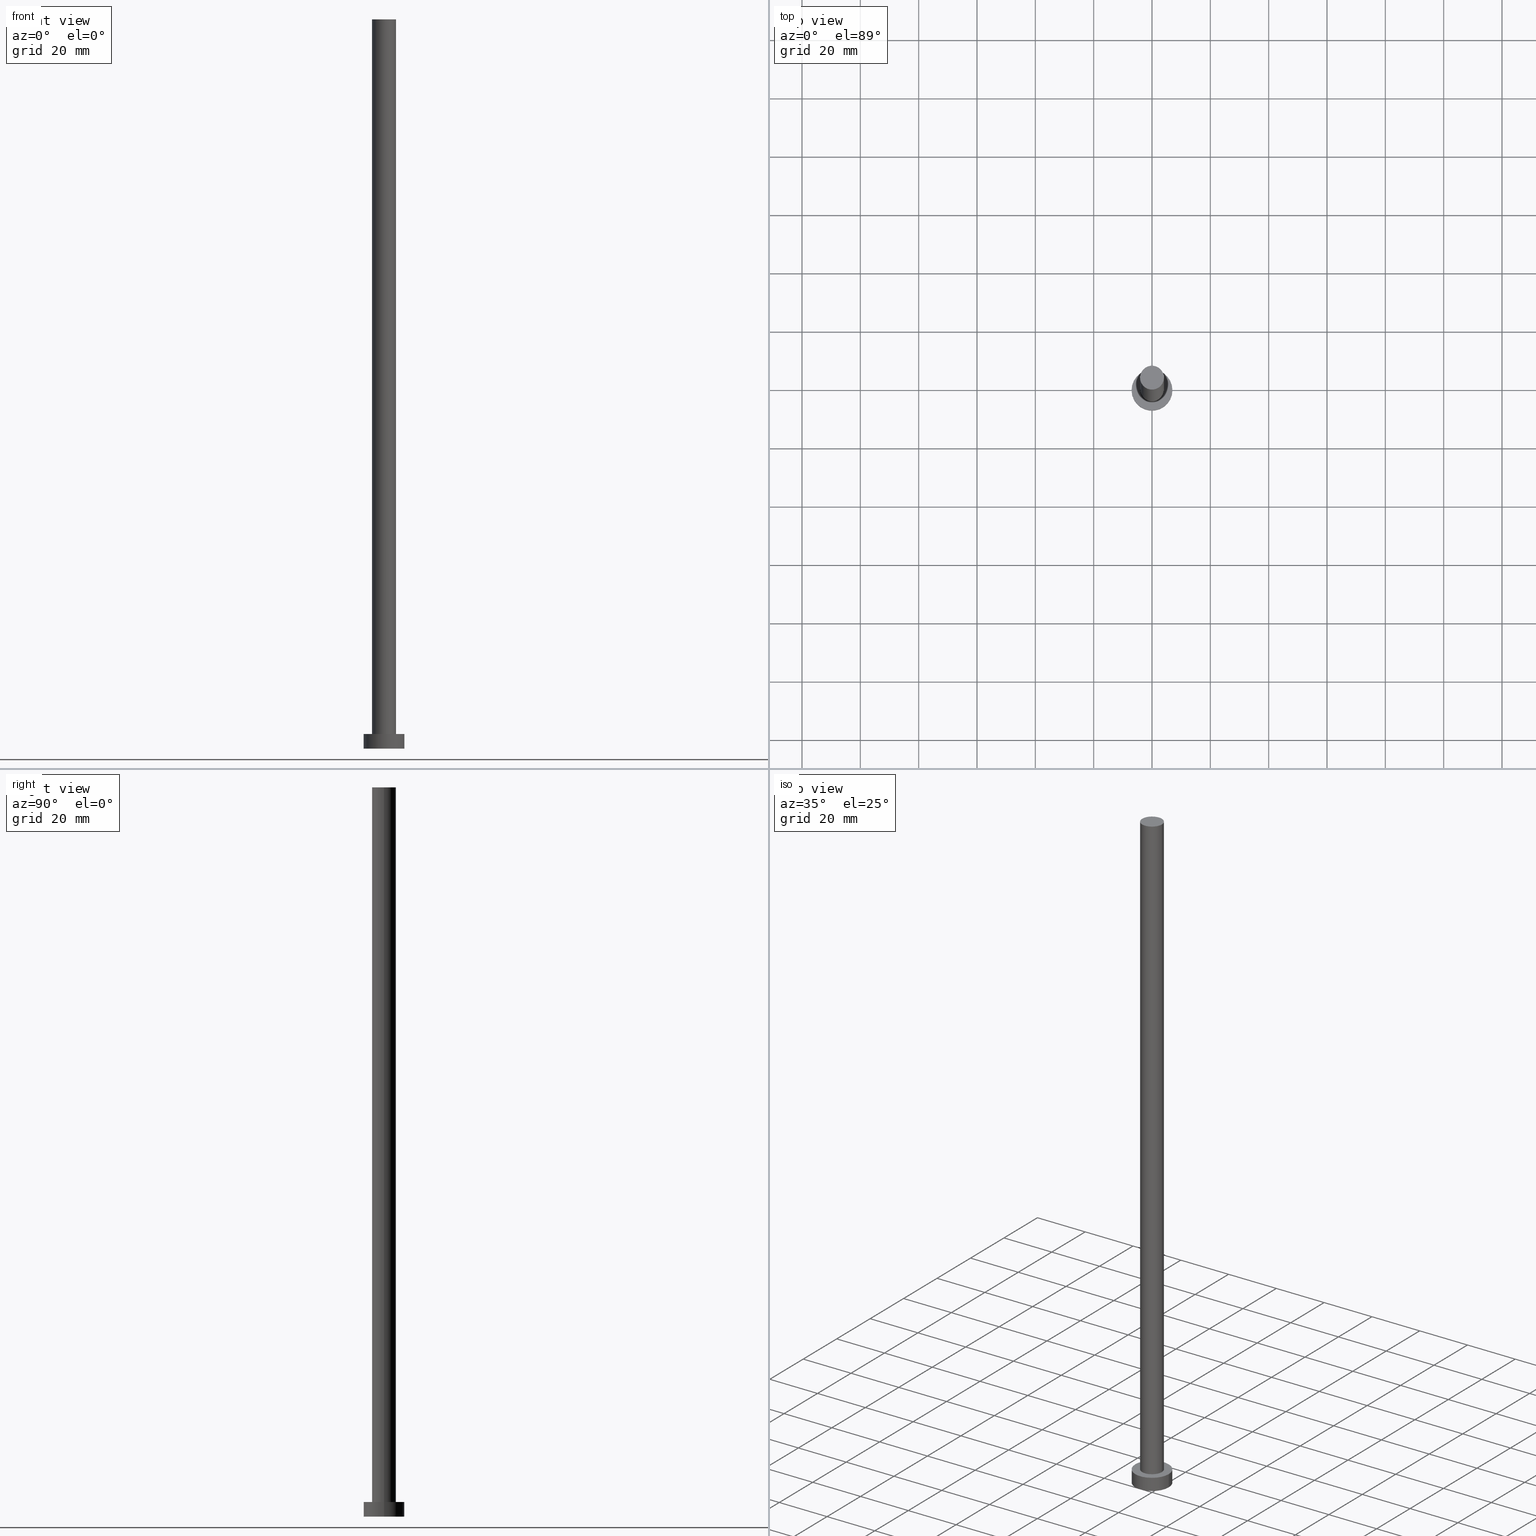
[diagram: canonical four-view strip — front | top / right | iso, engineering-drawing reading convention]
A machine part, canonical four-view strip (front | top / right | iso — engineering-drawing reading convention). The complete STEP part file that produces these views, byte-faithful:
ISO-10303-21;
HEADER;
FILE_DESCRIPTION (( 'STEP AP203' ),
    '1' );
FILE_NAME ('c09c.STEP',
    '2023-02-13T12:54:28',
    ( '' ),
    ( '' ),
    'SwSTEP 2.0',
    'SolidWorks 2019',
    '' );
FILE_SCHEMA (( 'CONFIG_CONTROL_DESIGN' ));
ENDSEC;

DATA;
#1 = ORIENTED_EDGE ( 'NONE', *, *, #234, .T. ) ;
#2 = DIRECTION ( 'NONE',  ( -1.000000000000000000, 0.000000000000000000, 0.000000000000000000 ) ) ;
#3 = AXIS2_PLACEMENT_3D ( 'NONE', #156, #150, #235 ) ;
#4 = ORIENTED_EDGE ( 'NONE', *, *, #123, .T. ) ;
#5 = EDGE_LOOP ( 'NONE', ( #217, #4, #211, #71 ) ) ;
#6 = AXIS2_PLACEMENT_3D ( 'NONE', #189, #214, #2 ) ;
#7 = LINE ( 'NONE', #152, #119 ) ;
#8 = ADVANCED_FACE ( 'NONE', ( #78 ), #99, .T. ) ;
#9 = DIRECTION ( 'NONE',  ( 1.000000000000000000, 0.000000000000000000, 0.000000000000000000 ) ) ;
#10 = COORDINATED_UNIVERSAL_TIME_OFFSET ( 1, 0, .AHEAD. ) ;
#11 = DIRECTION ( 'NONE',  ( 0.000000000000000000, 0.000000000000000000, 1.000000000000000000 ) ) ;
#12 = SECURITY_CLASSIFICATION_LEVEL ( 'unclassified' ) ;
#13 = PERSON_AND_ORGANIZATION_ROLE ( 'classification_officer' ) ;
#14 = EDGE_CURVE ( 'NONE', #190, #149, #151, .T. ) ;
#15 = AXIS2_PLACEMENT_3D ( 'NONE', #47, #220, #181 ) ;
#16 = AXIS2_PLACEMENT_3D ( 'NONE', #180, #40, #238 ) ;
#17 = SECURITY_CLASSIFICATION ( '', '', #12 ) ;
#18 = CC_DESIGN_PERSON_AND_ORGANIZATION_ASSIGNMENT ( #204, #13, ( #17 ) ) ;
#19 = CARTESIAN_POINT ( 'NONE',  ( 0.000000000000000000, 0.000000000000000000, 0.000000000000000000 ) ) ;
#20 = LOCAL_TIME ( 13, 54, 28.00000000000000000, #10 ) ;
#21 = EDGE_LOOP ( 'NONE', ( #43, #254, #176, #240 ) ) ;
#22 = FACE_OUTER_BOUND ( 'NONE', #56, .T. ) ;
#23 = DIRECTION ( 'NONE',  ( 1.000000000000000000, 0.000000000000000000, 0.000000000000000000 ) ) ;
#24 = PRODUCT_DEFINITION ( 'NEZN�M�', '', #246, #95 ) ;
#25 = PRODUCT ( 'c09c', 'c09c', '', ( #72 ) ) ;
#26 = AXIS2_PLACEMENT_3D ( 'NONE', #91, #178, #198 ) ;
#27 = APPROVAL_ROLE ( '' ) ;
#28 = VECTOR ( 'NONE', #147, 1000.000000000000000 ) ;
#29 = PERSON_AND_ORGANIZATION ( #182, #218 ) ;
#30 = EDGE_CURVE ( 'NONE', #89, #193, #195, .T. ) ;
#31 = AXIS2_PLACEMENT_3D ( 'NONE', #196, #241, #213 ) ;
#32 = COORDINATED_UNIVERSAL_TIME_OFFSET ( 1, 0, .AHEAD. ) ;
#33 = ADVANCED_FACE ( 'NONE', ( #136 ), #37, .T. ) ;
#34 = VECTOR ( 'NONE', #244, 1000.000000000000000 ) ;
#35 = CC_DESIGN_DATE_AND_TIME_ASSIGNMENT ( #143, #42, ( #17 ) ) ;
#36 = VERTEX_POINT ( 'NONE', #255 ) ;
#37 = CYLINDRICAL_SURFACE ( 'NONE', #6, 4.099999999999999645 ) ;
#38 = DIRECTION ( 'NONE',  ( 1.000000000000000000, 0.000000000000000000, 0.000000000000000000 ) ) ;
#39 = PERSON_AND_ORGANIZATION ( #182, #218 ) ;
#40 = DIRECTION ( 'NONE',  ( 0.000000000000000000, 0.000000000000000000, 1.000000000000000000 ) ) ;
#41 = DIRECTION ( 'NONE',  ( 1.000000000000000000, 0.000000000000000000, 0.000000000000000000 ) ) ;
#42 = DATE_TIME_ROLE ( 'classification_date' ) ;
#43 = ORIENTED_EDGE ( 'NONE', *, *, #123, .F. ) ;
#44 = CARTESIAN_POINT ( 'NONE',  ( -4.099999999999999645, 0.000000000000000000, 250.0000000000000000 ) ) ;
#45 = CARTESIAN_POINT ( 'NONE',  ( -7.000000000000000000, 0.000000000000000000, 0.000000000000000000 ) ) ;
#46 = ORIENTED_EDGE ( 'NONE', *, *, #30, .T. ) ;
#47 = CARTESIAN_POINT ( 'NONE',  ( 0.000000000000000000, 0.000000000000000000, 5.000000000000000000 ) ) ;
#48 = CC_DESIGN_APPROVAL ( #175, ( #17 ) ) ;
#49 = ORIENTED_EDGE ( 'NONE', *, *, #168, .F. ) ;
#50 = AXIS2_PLACEMENT_3D ( 'NONE', #77, #157, #161 ) ;
#51 = DIRECTION ( 'NONE',  ( 0.000000000000000000, 0.000000000000000000, 1.000000000000000000 ) ) ;
#52 = VERTEX_POINT ( 'NONE', #115 ) ;
#53 = CARTESIAN_POINT ( 'NONE',  ( 7.000000000000000000, 8.572527594031473190E-16, 5.000000000000000000 ) ) ;
#54 = FACE_OUTER_BOUND ( 'NONE', #114, .T. ) ;
#55 = FACE_OUTER_BOUND ( 'NONE', #75, .T. ) ;
#56 = EDGE_LOOP ( 'NONE', ( #46, #134 ) ) ;
#57 = CARTESIAN_POINT ( 'NONE',  ( 0.000000000000000000, 0.000000000000000000, 5.000000000000000000 ) ) ;
#58 = CARTESIAN_POINT ( 'NONE',  ( 0.000000000000000000, 0.000000000000000000, 250.0000000000000000 ) ) ;
#59 = CC_DESIGN_APPROVAL ( #146, ( #246 ) ) ;
#60 = CALENDAR_DATE ( 2023, 13, 2 ) ;
#61 = CC_DESIGN_PERSON_AND_ORGANIZATION_ASSIGNMENT ( #39, #135, ( #25 ) ) ;
#62 = CALENDAR_DATE ( 2023, 13, 2 ) ;
#63 = ADVANCED_FACE ( 'NONE', ( #55 ), #133, .F. ) ;
#64 = DATE_AND_TIME ( #165, #155 ) ;
#65 = CIRCLE ( 'NONE', #206, 7.000000000000000000 ) ;
#66 = APPLICATION_CONTEXT ( 'configuration controlled 3d designs of mechanical parts and assemblies' ) ;
#67 = APPROVAL ( #103, 'NEUR�EN�' ) ;
#68 = LINE ( 'NONE', #153, #28 ) ;
#69 = ORIENTED_EDGE ( 'NONE', *, *, #166, .F. ) ;
#70 = CARTESIAN_POINT ( 'NONE',  ( 0.000000000000000000, 0.000000000000000000, 250.0000000000000000 ) ) ;
#71 = ORIENTED_EDGE ( 'NONE', *, *, #116, .F. ) ;
#72 = MECHANICAL_CONTEXT ( 'NONE', #66, 'mechanical' ) ;
#73 = DIRECTION ( 'NONE',  ( 0.000000000000000000, 0.000000000000000000, 1.000000000000000000 ) ) ;
#74 = DIRECTION ( 'NONE',  ( -0.000000000000000000, -0.000000000000000000, -1.000000000000000000 ) ) ;
#75 = EDGE_LOOP ( 'NONE', ( #162, #108 ) ) ;
#76 = CARTESIAN_POINT ( 'NONE',  ( -4.099999999999999645, 0.000000000000000000, 5.000000000000000000 ) ) ;
#77 = CARTESIAN_POINT ( 'NONE',  ( 0.000000000000000000, 0.000000000000000000, 5.000000000000000000 ) ) ;
#78 = FACE_OUTER_BOUND ( 'NONE', #105, .T. ) ;
#79 = CIRCLE ( 'NONE', #15, 4.099999999999999645 ) ;
#80 = LOCAL_TIME ( 13, 54, 28.00000000000000000, #251 ) ;
#81 = PERSON_AND_ORGANIZATION_ROLE ( 'creator' ) ;
#82 = AXIS2_PLACEMENT_3D ( 'NONE', #191, #51, #38 ) ;
#83 = PERSON_AND_ORGANIZATION_ROLE ( 'creator' ) ;
#84 = CIRCLE ( 'NONE', #107, 4.099999999999999645 ) ;
#85 = APPROVAL_ROLE ( '' ) ;
#86 = APPROVAL_STATUS ( 'not_yet_approved' ) ;
#87 = CC_DESIGN_APPROVAL ( #67, ( #24 ) ) ;
#88 = ADVANCED_FACE ( 'NONE', ( #210, #22 ), #137, .T. ) ;
#89 = VERTEX_POINT ( 'NONE', #174 ) ;
#90 = DIRECTION ( 'NONE',  ( 1.000000000000000000, 0.000000000000000000, -0.000000000000000000 ) ) ;
#91 = CARTESIAN_POINT ( 'NONE',  ( 0.000000000000000000, 0.000000000000000000, 250.0000000000000000 ) ) ;
#92 = PERSON_AND_ORGANIZATION ( #182, #218 ) ;
#93 = DIRECTION ( 'NONE',  ( 0.000000000000000000, 0.000000000000000000, 1.000000000000000000 ) ) ;
#94 = APPLICATION_CONTEXT ( 'configuration controlled 3d designs of mechanical parts and assemblies' ) ;
#95 = DESIGN_CONTEXT ( 'detailed design', #94, 'design' ) ;
#96 = CYLINDRICAL_SURFACE ( 'NONE', #26, 4.099999999999999645 ) ;
#97 = AXIS2_PLACEMENT_3D ( 'NONE', #102, #111, #177 ) ;
#98 = DATE_AND_TIME ( #101, #20 ) ;
#99 = PLANE ( 'NONE',  #16 ) ;
#100 = DATE_AND_TIME ( #62, #239 ) ;
#101 = CALENDAR_DATE ( 2023, 13, 2 ) ;
#102 = CARTESIAN_POINT ( 'NONE',  ( 0.000000000000000000, 0.000000000000000000, 5.000000000000000000 ) ) ;
#103 = APPROVAL_STATUS ( 'not_yet_approved' ) ;
#104 = EDGE_CURVE ( 'NONE', #193, #89, #252, .T. ) ;
#105 = EDGE_LOOP ( 'NONE', ( #132, #215 ) ) ;
#106 = AXIS2_PLACEMENT_3D ( 'NONE', #113, #112, #90 ) ;
#107 = AXIS2_PLACEMENT_3D ( 'NONE', #58, #219, #9 ) ;
#108 = ORIENTED_EDGE ( 'NONE', *, *, #203, .F. ) ;
#109 = ORIENTED_EDGE ( 'NONE', *, *, #14, .F. ) ;
#110 = EDGE_CURVE ( 'NONE', #190, #130, #7, .T. ) ;
#111 = DIRECTION ( 'NONE',  ( -0.000000000000000000, -0.000000000000000000, -1.000000000000000000 ) ) ;
#112 = DIRECTION ( 'NONE',  ( 0.000000000000000000, 0.000000000000000000, 1.000000000000000000 ) ) ;
#113 = CARTESIAN_POINT ( 'NONE',  ( 0.000000000000000000, 0.000000000000000000, 0.000000000000000000 ) ) ;
#114 = EDGE_LOOP ( 'NONE', ( #49, #237, #1, #129 ) ) ;
#115 = CARTESIAN_POINT ( 'NONE',  ( 4.099999999999999645, 5.021051876504147385E-16, 5.000000000000000000 ) ) ;
#116 = EDGE_CURVE ( 'NONE', #89, #172, #68, .T. ) ;
#117 = PERSON_AND_ORGANIZATION ( #182, #218 ) ;
#118 =( LENGTH_UNIT ( ) NAMED_UNIT ( * ) SI_UNIT ( .MILLI., .METRE. ) );
#119 = VECTOR ( 'NONE', #74, 1000.000000000000000 ) ;
#120 = DATE_AND_TIME ( #60, #126 ) ;
#121 = CARTESIAN_POINT ( 'NONE',  ( 7.000000000000000000, 8.572527594031473190E-16, 5.000000000000000000 ) ) ;
#122 = CLOSED_SHELL ( 'NONE', ( #158, #242, #184, #88, #63, #33, #8 ) ) ;
#123 = EDGE_CURVE ( 'NONE', #193, #36, #236, .T. ) ;
#124 = CARTESIAN_POINT ( 'NONE',  ( 4.099999999999999645, 5.021051876504147385E-16, 250.0000000000000000 ) ) ;
#125 = FACE_OUTER_BOUND ( 'NONE', #5, .T. ) ;
#126 = LOCAL_TIME ( 13, 54, 28.00000000000000000, #245 ) ;
#127 = COORDINATED_UNIVERSAL_TIME_OFFSET ( 1, 0, .AHEAD. ) ;
#128 = AXIS2_PLACEMENT_3D ( 'NONE', #19, #194, #23 ) ;
#129 = ORIENTED_EDGE ( 'NONE', *, *, #110, .F. ) ;
#130 = VERTEX_POINT ( 'NONE', #76 ) ;
#131 = VECTOR ( 'NONE', #230, 1000.000000000000000 ) ;
#132 = ORIENTED_EDGE ( 'NONE', *, *, #14, .T. ) ;
#133 = PLANE ( 'NONE',  #106 ) ;
#134 = ORIENTED_EDGE ( 'NONE', *, *, #104, .T. ) ;
#135 = PERSON_AND_ORGANIZATION_ROLE ( 'design_owner' ) ;
#136 = FACE_OUTER_BOUND ( 'NONE', #144, .T. ) ;
#137 = PLANE ( 'NONE',  #31 ) ;
#138 =( NAMED_UNIT ( * ) PLANE_ANGLE_UNIT ( ) SI_UNIT ( $, .RADIAN. ) );
#139 = ORIENTED_EDGE ( 'NONE', *, *, #205, .T. ) ;
#140 = PERSON_AND_ORGANIZATION ( #182, #218 ) ;
#141 = DIRECTION ( 'NONE',  ( 1.000000000000000000, 0.000000000000000000, 0.000000000000000000 ) ) ;
#142 = PERSON_AND_ORGANIZATION_ROLE ( 'design_supplier' ) ;
#143 = DATE_AND_TIME ( #197, #80 ) ;
#144 = EDGE_LOOP ( 'NONE', ( #69, #109, #188, #139 ) ) ;
#145 = ORIENTED_EDGE ( 'NONE', *, *, #205, .F. ) ;
#146 = APPROVAL ( #249, 'NEUR�EN�' ) ;
#147 = DIRECTION ( 'NONE',  ( -0.000000000000000000, -0.000000000000000000, -1.000000000000000000 ) ) ;
#148 = CIRCLE ( 'NONE', #128, 7.000000000000000000 ) ;
#149 = VERTEX_POINT ( 'NONE', #209 ) ;
#150 = DIRECTION ( 'NONE',  ( 0.000000000000000000, 0.000000000000000000, 1.000000000000000000 ) ) ;
#151 = CIRCLE ( 'NONE', #186, 4.099999999999999645 ) ;
#152 = CARTESIAN_POINT ( 'NONE',  ( -4.099999999999999645, 0.000000000000000000, 250.0000000000000000 ) ) ;
#153 = CARTESIAN_POINT ( 'NONE',  ( -7.000000000000000000, 0.000000000000000000, 5.000000000000000000 ) ) ;
#154 = EDGE_CURVE ( 'NONE', #172, #36, #148, .T. ) ;
#155 = LOCAL_TIME ( 13, 54, 28.00000000000000000, #32 ) ;
#156 = CARTESIAN_POINT ( 'NONE',  ( 0.000000000000000000, 0.000000000000000000, 0.000000000000000000 ) ) ;
#157 = DIRECTION ( 'NONE',  ( -0.000000000000000000, -0.000000000000000000, -1.000000000000000000 ) ) ;
#158 = ADVANCED_FACE ( 'NONE', ( #54 ), #96, .T. ) ;
#159 = APPROVAL_DATE_TIME ( #98, #67 ) ;
#160 = APPROVAL_PERSON_ORGANIZATION ( #117, #175, #85 ) ;
#161 = DIRECTION ( 'NONE',  ( -1.000000000000000000, 0.000000000000000000, 0.000000000000000000 ) ) ;
#162 = ORIENTED_EDGE ( 'NONE', *, *, #154, .F. ) ;
#163 = DIRECTION ( 'NONE',  ( 1.000000000000000000, 0.000000000000000000, 0.000000000000000000 ) ) ;
#164 = DATE_TIME_ROLE ( 'creation_date' ) ;
#165 = CALENDAR_DATE ( 2023, 13, 2 ) ;
#166 = EDGE_CURVE ( 'NONE', #149, #52, #216, .T. ) ;
#167 = APPROVAL_DATE_TIME ( #64, #175 ) ;
#168 = EDGE_CURVE ( 'NONE', #149, #190, #84, .T. ) ;
#169 = ADVANCED_BREP_SHAPE_REPRESENTATION ( 'c09c', ( #231, #3 ), #187 ) ;
#170 = CARTESIAN_POINT ( 'NONE',  ( 0.000000000000000000, 0.000000000000000000, 5.000000000000000000 ) ) ;
#171 = APPROVAL_PERSON_ORGANIZATION ( #200, #146, #27 ) ;
#172 = VERTEX_POINT ( 'NONE', #45 ) ;
#173 = APPLICATION_PROTOCOL_DEFINITION ( 'international standard', 'config_control_design', 1994, #66 ) ;
#174 = CARTESIAN_POINT ( 'NONE',  ( -7.000000000000000000, 0.000000000000000000, 5.000000000000000000 ) ) ;
#175 = APPROVAL ( #86, 'NEUR�EN�' ) ;
#176 = ORIENTED_EDGE ( 'NONE', *, *, #116, .T. ) ;
#177 = DIRECTION ( 'NONE',  ( -1.000000000000000000, 0.000000000000000000, 0.000000000000000000 ) ) ;
#178 = DIRECTION ( 'NONE',  ( -0.000000000000000000, -0.000000000000000000, -1.000000000000000000 ) ) ;
#179 =( NAMED_UNIT ( * ) SI_UNIT ( $, .STERADIAN. ) SOLID_ANGLE_UNIT ( ) );
#180 = CARTESIAN_POINT ( 'NONE',  ( 0.000000000000000000, 0.000000000000000000, 250.0000000000000000 ) ) ;
#181 = DIRECTION ( 'NONE',  ( 1.000000000000000000, 0.000000000000000000, 0.000000000000000000 ) ) ;
#182 = PERSON ( 'NEUR�EN�', 'NEUR�EN�', 'NEUR�EN�', ('NEUR�EN�'), ('NEUR�EN�'), ('NEUR�EN�') ) ;
#183 = PERSON_AND_ORGANIZATION ( #182, #218 ) ;
#184 = ADVANCED_FACE ( 'NONE', ( #199 ), #222, .T. ) ;
#185 = CC_DESIGN_DATE_AND_TIME_ASSIGNMENT ( #120, #164, ( #24 ) ) ;
#186 = AXIS2_PLACEMENT_3D ( 'NONE', #70, #73, #41 ) ;
#187 =( GEOMETRIC_REPRESENTATION_CONTEXT ( 3 ) GLOBAL_UNCERTAINTY_ASSIGNED_CONTEXT ( ( #224 ) ) GLOBAL_UNIT_ASSIGNED_CONTEXT ( ( #118, #138, #179 ) ) REPRESENTATION_CONTEXT ( 'NONE', 'WORKASPACE' ) );
#188 = ORIENTED_EDGE ( 'NONE', *, *, #110, .T. ) ;
#189 = CARTESIAN_POINT ( 'NONE',  ( 0.000000000000000000, 0.000000000000000000, 250.0000000000000000 ) ) ;
#190 = VERTEX_POINT ( 'NONE', #44 ) ;
#191 = CARTESIAN_POINT ( 'NONE',  ( 0.000000000000000000, 0.000000000000000000, 5.000000000000000000 ) ) ;
#192 = APPROVAL_PERSON_ORGANIZATION ( #92, #67, #250 ) ;
#193 = VERTEX_POINT ( 'NONE', #121 ) ;
#194 = DIRECTION ( 'NONE',  ( 0.000000000000000000, 0.000000000000000000, 1.000000000000000000 ) ) ;
#195 = CIRCLE ( 'NONE', #82, 7.000000000000000000 ) ;
#196 = CARTESIAN_POINT ( 'NONE',  ( 0.000000000000000000, 0.000000000000000000, 5.000000000000000000 ) ) ;
#197 = CALENDAR_DATE ( 2023, 13, 2 ) ;
#198 = DIRECTION ( 'NONE',  ( -1.000000000000000000, 0.000000000000000000, 0.000000000000000000 ) ) ;
#199 = FACE_OUTER_BOUND ( 'NONE', #21, .T. ) ;
#200 = PERSON_AND_ORGANIZATION ( #182, #218 ) ;
#201 = AXIS2_PLACEMENT_3D ( 'NONE', #57, #11, #163 ) ;
#202 = CYLINDRICAL_SURFACE ( 'NONE', #97, 7.000000000000000000 ) ;
#203 = EDGE_CURVE ( 'NONE', #36, #172, #65, .T. ) ;
#204 = PERSON_AND_ORGANIZATION ( #182, #218 ) ;
#205 = EDGE_CURVE ( 'NONE', #130, #52, #79, .T. ) ;
#206 = AXIS2_PLACEMENT_3D ( 'NONE', #247, #243, #141 ) ;
#207 = CC_DESIGN_PERSON_AND_ORGANIZATION_ASSIGNMENT ( #183, #81, ( #246 ) ) ;
#208 = CIRCLE ( 'NONE', #201, 4.099999999999999645 ) ;
#209 = CARTESIAN_POINT ( 'NONE',  ( 4.099999999999999645, 5.021051876504147385E-16, 250.0000000000000000 ) ) ;
#210 = FACE_BOUND ( 'NONE', #228, .T. ) ;
#211 = ORIENTED_EDGE ( 'NONE', *, *, #203, .T. ) ;
#212 = APPLICATION_PROTOCOL_DEFINITION ( 'international standard', 'config_control_design', 1994, #94 ) ;
#213 = DIRECTION ( 'NONE',  ( 1.000000000000000000, 0.000000000000000000, -0.000000000000000000 ) ) ;
#214 = DIRECTION ( 'NONE',  ( -0.000000000000000000, -0.000000000000000000, -1.000000000000000000 ) ) ;
#215 = ORIENTED_EDGE ( 'NONE', *, *, #168, .T. ) ;
#216 = LINE ( 'NONE', #124, #34 ) ;
#217 = ORIENTED_EDGE ( 'NONE', *, *, #104, .F. ) ;
#218 = ORGANIZATION ( 'NEUR�EN�', 'NEUR�EN�', '' ) ;
#219 = DIRECTION ( 'NONE',  ( 0.000000000000000000, 0.000000000000000000, 1.000000000000000000 ) ) ;
#220 = DIRECTION ( 'NONE',  ( 0.000000000000000000, 0.000000000000000000, 1.000000000000000000 ) ) ;
#221 = CC_DESIGN_PERSON_AND_ORGANIZATION_ASSIGNMENT ( #29, #142, ( #246 ) ) ;
#222 = CYLINDRICAL_SURFACE ( 'NONE', #50, 7.000000000000000000 ) ;
#223 = APPROVAL_DATE_TIME ( #100, #146 ) ;
#224 = UNCERTAINTY_MEASURE_WITH_UNIT (LENGTH_MEASURE( 1.000000000000000082E-05 ), #118, 'distance_accuracy_value', 'NONE');
#225 = PRODUCT_DEFINITION_SHAPE ( 'NONE', 'NONE',  #24 ) ;
#226 = CC_DESIGN_SECURITY_CLASSIFICATION ( #17, ( #246 ) ) ;
#227 = SHAPE_DEFINITION_REPRESENTATION ( #225, #169 ) ;
#228 = EDGE_LOOP ( 'NONE', ( #145, #232 ) ) ;
#229 = CC_DESIGN_PERSON_AND_ORGANIZATION_ASSIGNMENT ( #140, #83, ( #24 ) ) ;
#230 = DIRECTION ( 'NONE',  ( -0.000000000000000000, -0.000000000000000000, -1.000000000000000000 ) ) ;
#231 = MANIFOLD_SOLID_BREP ( 'P�idat vysunut�m3', #122 ) ;
#232 = ORIENTED_EDGE ( 'NONE', *, *, #234, .F. ) ;
#233 = DIRECTION ( 'NONE',  ( 1.000000000000000000, 0.000000000000000000, 0.000000000000000000 ) ) ;
#234 = EDGE_CURVE ( 'NONE', #52, #130, #208, .T. ) ;
#235 = DIRECTION ( 'NONE',  ( 1.000000000000000000, 0.000000000000000000, 0.000000000000000000 ) ) ;
#236 = LINE ( 'NONE', #53, #131 ) ;
#237 = ORIENTED_EDGE ( 'NONE', *, *, #166, .T. ) ;
#238 = DIRECTION ( 'NONE',  ( 1.000000000000000000, 0.000000000000000000, -0.000000000000000000 ) ) ;
#239 = LOCAL_TIME ( 13, 54, 28.00000000000000000, #127 ) ;
#240 = ORIENTED_EDGE ( 'NONE', *, *, #154, .T. ) ;
#241 = DIRECTION ( 'NONE',  ( 0.000000000000000000, 0.000000000000000000, 1.000000000000000000 ) ) ;
#242 = ADVANCED_FACE ( 'NONE', ( #125 ), #202, .T. ) ;
#243 = DIRECTION ( 'NONE',  ( 0.000000000000000000, 0.000000000000000000, 1.000000000000000000 ) ) ;
#244 = DIRECTION ( 'NONE',  ( -0.000000000000000000, -0.000000000000000000, -1.000000000000000000 ) ) ;
#245 = COORDINATED_UNIVERSAL_TIME_OFFSET ( 1, 0, .AHEAD. ) ;
#246 = PRODUCT_DEFINITION_FORMATION_WITH_SPECIFIED_SOURCE ( 'LIBOVOLN�', '', #25, .NOT_KNOWN. ) ;
#247 = CARTESIAN_POINT ( 'NONE',  ( 0.000000000000000000, 0.000000000000000000, 0.000000000000000000 ) ) ;
#248 = PRODUCT_RELATED_PRODUCT_CATEGORY ( 'detail', '', ( #25 ) ) ;
#249 = APPROVAL_STATUS ( 'not_yet_approved' ) ;
#250 = APPROVAL_ROLE ( '' ) ;
#251 = COORDINATED_UNIVERSAL_TIME_OFFSET ( 1, 0, .AHEAD. ) ;
#252 = CIRCLE ( 'NONE', #253, 7.000000000000000000 ) ;
#253 = AXIS2_PLACEMENT_3D ( 'NONE', #170, #93, #233 ) ;
#254 = ORIENTED_EDGE ( 'NONE', *, *, #30, .F. ) ;
#255 = CARTESIAN_POINT ( 'NONE',  ( 7.000000000000000000, 8.572527594031473190E-16, 0.000000000000000000 ) ) ;
ENDSEC;
END-ISO-10303-21;
